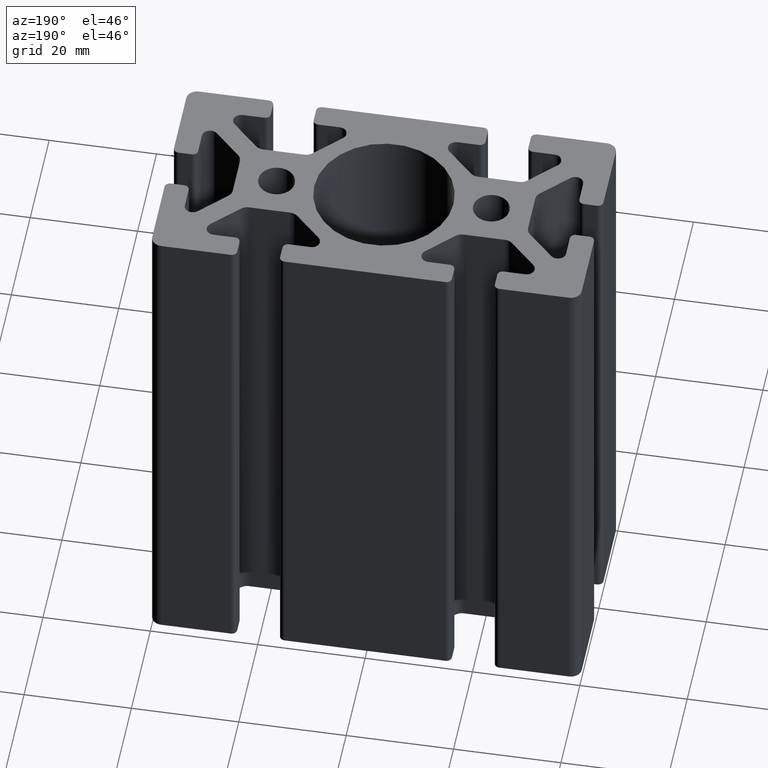
[diagram: clean part render]
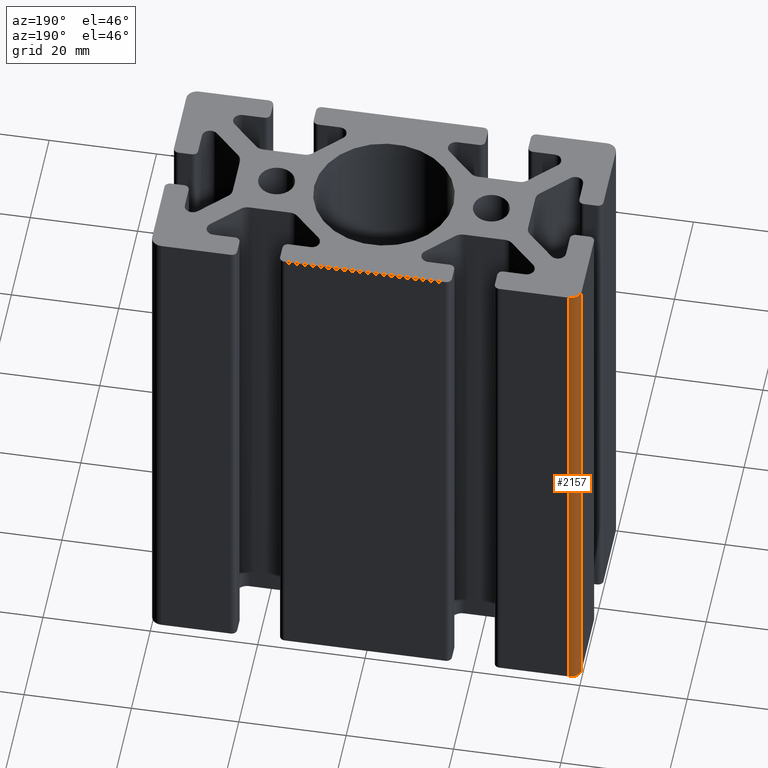
[diagram: same view with one face highlighted and labeled with its STEP entity id]
A machine part, auxiliary view. The second image highlights one B-rep face of the part: STEP entity #2157.
In plain terms, the highlighted cylindrical surface (edge-blend (fillet) strip) has radius 2 mm, axis along (0, 0, 1).
Its self-contained STEP definition (entity closure, byte-faithful):
#205=LINE('',#3628,#413);
#219=LINE('',#3661,#427);
#413=VECTOR('',#2974,100.);
#427=VECTOR('',#3010,100.);
#597=FACE_OUTER_BOUND('',#712,.T.);
#712=EDGE_LOOP('',(#1872,#1873,#1874,#1875));
#826=CIRCLE('',#2371,2.);
#828=CIRCLE('',#2376,2.);
#1035=VERTEX_POINT('',#3625);
#1036=VERTEX_POINT('',#3627);
#1043=VERTEX_POINT('',#3654);
#1044=VERTEX_POINT('',#3660);
#1337=EDGE_CURVE('',#1035,#1036,#205,.T.);
#1353=EDGE_CURVE('',#1043,#1036,#826,.T.);
#1356=EDGE_CURVE('',#1044,#1043,#219,.T.);
#1358=EDGE_CURVE('',#1044,#1035,#828,.T.);
#1872=ORIENTED_EDGE('',*,*,#1353,.T.);
#1873=ORIENTED_EDGE('',*,*,#1337,.F.);
#1874=ORIENTED_EDGE('',*,*,#1358,.F.);
#1875=ORIENTED_EDGE('',*,*,#1356,.T.);
#2051=CYLINDRICAL_SURFACE('',#2375,2.);
#2157=ADVANCED_FACE('',(#597),#2051,.T.);
#2371=AXIS2_PLACEMENT_3D('',#3655,#3001,#3002);
#2375=AXIS2_PLACEMENT_3D('',#3663,#3012,#3013);
#2376=AXIS2_PLACEMENT_3D('',#3664,#3014,#3015);
#2974=DIRECTION('',(0.,0.,1.));
#3001=DIRECTION('center_axis',(0.,0.,-1.));
#3002=DIRECTION('ref_axis',(-2.22044604925031E-15,1.,0.));
#3010=DIRECTION('',(0.,0.,1.));
#3012=DIRECTION('center_axis',(0.,0.,1.));
#3013=DIRECTION('ref_axis',(-2.22044604925031E-15,1.,0.));
#3014=DIRECTION('center_axis',(0.,0.,-1.));
#3015=DIRECTION('ref_axis',(-2.22044604925031E-15,1.,0.));
#3625=CARTESIAN_POINT('',(-38.,20.,0.));
#3627=CARTESIAN_POINT('',(-38.,20.,100.));
#3628=CARTESIAN_POINT('',(-38.,20.,0.));
#3654=CARTESIAN_POINT('',(-40.,18.,100.));
#3655=CARTESIAN_POINT('Origin',(-38.,18.,100.));
#3660=CARTESIAN_POINT('',(-40.,18.,0.));
#3661=CARTESIAN_POINT('',(-40.,18.,0.));
#3663=CARTESIAN_POINT('Origin',(-38.,18.,0.));
#3664=CARTESIAN_POINT('Origin',(-38.,18.,0.));